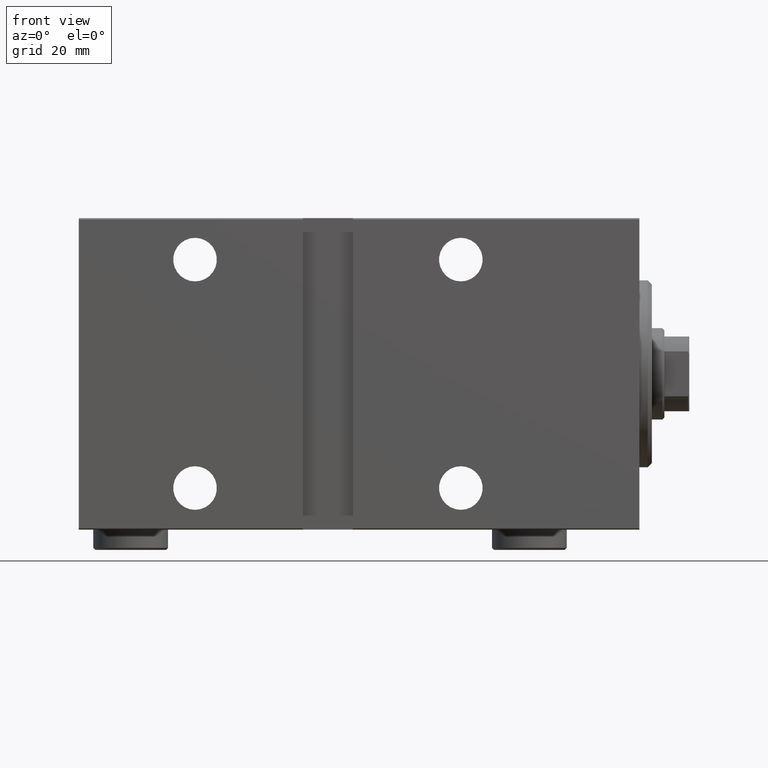
[diagram: clean part render]
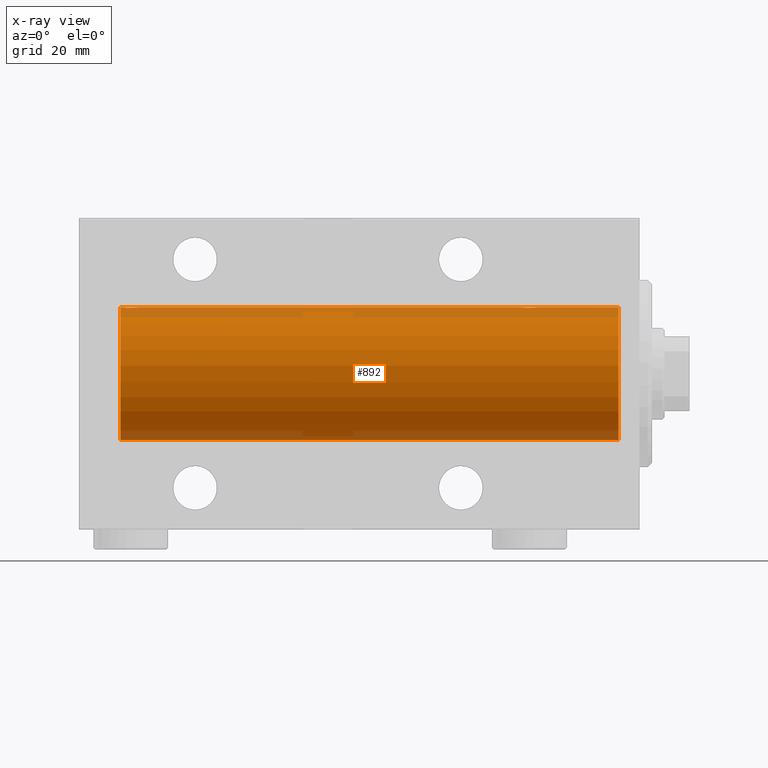
[diagram: x-ray — body ghosted, one internal face saturated and labeled with its STEP entity id]
A machine part, front view, then the same camera in x-ray: the body is ghosted and one INTERNAL B-rep face — a face not visible from any outside direction — is saturated and labeled: STEP entity #892.
In plain terms, the highlighted cylindrical surface (partial cylindrical patch) has radius 16 mm, axis along (1, 0, -0).
Its self-contained STEP definition (entity closure, byte-faithful):
#584 = CARTESIAN_POINT ( 'NONE',  ( 24.90998471899876066, 1.220169175415113827, 15.95377581882983442 ) ) ;
#892 = ADVANCED_FACE ( 'NONE', ( #36186 ), #5512, .F. ) ;
#1469 = CARTESIAN_POINT ( 'NONE',  ( 27.50659181559580446, 1.747750603376297729, 15.90457341008072056 ) ) ;
#2196 = ORIENTED_EDGE ( 'NONE', *, *, #18136, .T. ) ;
#2584 = CARTESIAN_POINT ( 'NONE',  ( 121.4968875296496407, 1.735145127817741662, 15.90580292899658410 ) ) ;
#3198 = LINE ( 'NONE', #19915, #30837 ) ;
#3259 = VERTEX_POINT ( 'NONE', #20470 ) ;
#3800 = CARTESIAN_POINT ( 'NONE',  ( 123.0253175645940047, 1.947280337074161150, 15.88137861827787489 ) ) ;
#4019 = CARTESIAN_POINT ( 'NONE',  ( 121.8561303196698589, 1.898058445420877982, 15.88709929148890154 ) ) ;
#4391 = CARTESIAN_POINT ( 'NONE',  ( 26.37014691649501685, 2.000047931387139322, 15.87450182760079187 ) ) ;
#4609 = CARTESIAN_POINT ( 'NONE',  ( 28.49999999999998579, 0.1322838750249257511, 16.00000000000000000 ) ) ;
#4808 = LINE ( 'NONE', #28776, #40244 ) ;
#5049 = CARTESIAN_POINT ( 'NONE',  ( 28.48700524008413382, 0.2623312429553315561, 15.99836091803360105 ) ) ;
#5509 = CARTESIAN_POINT ( 'NONE',  ( 120.9099847189987855, 1.220169175415117158, 15.95377581882983975 ) ) ;
#5512 = CYLINDRICAL_SURFACE ( 'NONE', #33920, 16.00000000000000000 ) ;
#6038 = CARTESIAN_POINT ( 'NONE',  ( 125.0000000000000000, 1.959434878635765131E-15, -16.00000000000000000 ) ) ;
#6470 = EDGE_CURVE ( 'NONE', #22560, #17367, #14355, .T. ) ;
#7079 = EDGE_CURVE ( 'NONE', #21003, #19011, #18511, .T. ) ;
#7161 = CARTESIAN_POINT ( 'NONE',  ( 124.2356809849826220, 1.002241074716279989, 15.96895041604535770 ) ) ;
#7207 = EDGE_CURVE ( 'NONE', #23665, #17367, #3198, .T. ) ;
#7384 = CARTESIAN_POINT ( 'NONE',  ( 124.2971341474822253, 0.8874076679346750707, 15.97583181162460697 ) ) ;
#8027 = CARTESIAN_POINT ( 'NONE',  ( 120.5000000000000142, -2.738767290746308786E-23, 16.00000000000000000 ) ) ;
#9510 = CARTESIAN_POINT ( 'NONE',  ( 5.000000000000004441, 0.000000000000000000, 16.00000000000000000 ) ) ;
#10170 = CARTESIAN_POINT ( 'NONE',  ( 125.0000000000000000, 0.000000000000000000, 16.00000000000000000 ) ) ;
#10519 = CARTESIAN_POINT ( 'NONE',  ( 124.3975887005559429, 0.6452446332038145327, 15.98744362947834929 ) ) ;
#10665 = EDGE_CURVE ( 'NONE', #15382, #22560, #43967, .T. ) ;
#10890 = CARTESIAN_POINT ( 'NONE',  ( 28.23568098498261492, 1.002241074716280655, 15.96895041604536480 ) ) ;
#10975 = ORIENTED_EDGE ( 'NONE', *, *, #7079, .T. ) ;
#11109 = CARTESIAN_POINT ( 'NONE',  ( 24.49999999999999289, 0.1305944228192297274, 15.99999999999999645 ) ) ;
#11201 = VERTEX_POINT ( 'NONE', #8027 ) ;
#11334 = CARTESIAN_POINT ( 'NONE',  ( 26.76191462762254858, 1.999903730784154066, 15.87451999516785861 ) ) ;
#11556 = CARTESIAN_POINT ( 'NONE',  ( 25.17924175171067702, 1.507649250492130388, 15.92908549642226745 ) ) ;
#11774 = DIRECTION ( 'NONE',  ( -1.000000000000000000, 0.000000000000000000, 0.000000000000000000 ) ) ;
#11897 = DIRECTION ( 'NONE',  ( -1.000000000000000000, 0.000000000000000000, 0.000000000000000000 ) ) ;
#12672 = CARTESIAN_POINT ( 'NONE',  ( 120.9926283968757303, 1.321075116345873601, 15.94564302722883653 ) ) ;
#13318 = DIRECTION ( 'NONE',  ( -1.000000000000000000, -0.000000000000000000, -0.000000000000000000 ) ) ;
#13684 = VECTOR ( 'NONE', #28585, 1000.000000000000000 ) ;
#14256 = CARTESIAN_POINT ( 'NONE',  ( 24.76517329325045225, 1.003662148334361959, 15.96885838080210007 ) ) ;
#14355 = CIRCLE ( 'NONE', #37228, 16.00000000000000000 ) ;
#14462 = ORIENTED_EDGE ( 'NONE', *, *, #28796, .T. ) ;
#14482 = DIRECTION ( 'NONE',  ( 0.000000000000000000, 0.000000000000000000, 1.000000000000000000 ) ) ;
#14484 = CARTESIAN_POINT ( 'NONE',  ( 24.56430947073869930, 0.5198215460038717595, 15.99206840425678955 ) ) ;
#15137 = CARTESIAN_POINT ( 'NONE',  ( 24.51309075167874596, 0.2632563459770819736, 15.99834873924246459 ) ) ;
#15382 = VERTEX_POINT ( 'NONE', #30319 ) ;
#15598 = CARTESIAN_POINT ( 'NONE',  ( 120.5130907516787602, 0.2632563459770823622, 15.99834873924246104 ) ) ;
#15674 = CARTESIAN_POINT ( 'NONE',  ( 125.0000000000000000, 0.000000000000000000, 16.00000000000000000 ) ) ;
#17367 = VERTEX_POINT ( 'NONE', #17960 ) ;
#17472 = CARTESIAN_POINT ( 'NONE',  ( 122.3701469164950311, 2.000047931387136213, 15.87450182760079898 ) ) ;
#17688 = CARTESIAN_POINT ( 'NONE',  ( 121.6138224294273158, 1.797743958659247854, 15.89876304682111652 ) ) ;
#17960 = CARTESIAN_POINT ( 'NONE',  ( 5.000000000000004441, 1.959434878635765131E-15, -16.00000000000000000 ) ) ;
#18060 = CARTESIAN_POINT ( 'NONE',  ( 125.0000000000000000, 0.000000000000000000, 0.000000000000000000 ) ) ;
#18136 = EDGE_CURVE ( 'NONE', #11201, #3259, #4808, .T. ) ;
#18182 = AXIS2_PLACEMENT_3D ( 'NONE', #18060, #11774, #14482 ) ;
#18496 = CARTESIAN_POINT ( 'NONE',  ( 28.00610712468246177, 1.322357532253821910, 15.94553003295878391 ) ) ;
#18511 = LINE ( 'NONE', #25677, #13684 ) ;
#19011 = VERTEX_POINT ( 'NONE', #29770 ) ;
#19174 = CARTESIAN_POINT ( 'NONE',  ( 120.5643094707387348, 0.5198215460038717595, 15.99206840425679310 ) ) ;
#19610 = CARTESIAN_POINT ( 'NONE',  ( 120.7025007139496040, 0.8866640484200094541, 15.97587307151818159 ) ) ;
#19915 = CARTESIAN_POINT ( 'NONE',  ( 125.0000000000000000, 1.959434878635765131E-15, -16.00000000000000000 ) ) ;
#19924 = B_SPLINE_CURVE_WITH_KNOTS ( 'NONE', 3,
 ( #37833, #31340, #34249, #38057, #10519, #7384, #7161, #20833, #34475, #21055, #27989, #3800, #27764, #17472, #31117, #34695, #4019, #17688, #2584, #28208, #43324, #12672, #5509, #29251, #19610, #41846, #19174, #15598, #42883, #25679 ),
 .UNSPECIFIED., .F., .F.,
 ( 4, 2, 2, 2, 2, 2, 2, 2, 2, 2, 2, 2, 2, 2, 4 ),
 ( 3.488315472694475996E-18, 0.0003911894522871196605, 0.0007823789045742358516, 0.001173568356861352151, 0.001564757809148468234, 0.002347136713722699532, 0.003129515618296931263, 0.003520705070584047563, 0.003911894522871163862, 0.004303083975158279728, 0.004694273427445395594, 0.005085462879732512327, 0.005476652332019629060, 0.005867841784306744926, 0.006259031236593860792 ),
 .UNSPECIFIED. ) ;
#20153 = EDGE_CURVE ( 'NONE', #21003, #23665, #30323, .T. ) ;
#20470 = CARTESIAN_POINT ( 'NONE',  ( 28.49999999999999645, -1.207828523974853969E-15, 16.00000000000000000 ) ) ;
#20833 = CARTESIAN_POINT ( 'NONE',  ( 124.0905150485210129, 1.219564485341765758, 15.95382484008322344 ) ) ;
#21003 = VERTEX_POINT ( 'NONE', #15674 ) ;
#21055 = CARTESIAN_POINT ( 'NONE',  ( 123.7295611173978500, 1.598790766515140849, 15.92099550861381374 ) ) ;
#21203 = CARTESIAN_POINT ( 'NONE',  ( 24.70250071394960045, 0.8866640484200088990, 15.97587307151817448 ) ) ;
#21643 = VECTOR ( 'NONE', #13318, 1000.000000000000000 ) ;
#21862 = CARTESIAN_POINT ( 'NONE',  ( 28.49999999999999645, -1.207828523974853969E-15, 16.00000000000000000 ) ) ;
#22560 = VERTEX_POINT ( 'NONE', #9510 ) ;
#23665 = VERTEX_POINT ( 'NONE', #6038 ) ;
#24144 = EDGE_LOOP ( 'NONE', ( #33376, #30458, #10975, #40528, #2196, #14462, #31466, #31458 ) ) ;
#24564 = CARTESIAN_POINT ( 'NONE',  ( 25.98086902289887234, 1.935876924222074358, 15.88247600692093187 ) ) ;
#24787 = CARTESIAN_POINT ( 'NONE',  ( 25.49688752964961225, 1.735145127817741439, 15.90580292899658410 ) ) ;
#24981 = DIRECTION ( 'NONE',  ( -1.000000000000000000, -0.000000000000000000, -0.000000000000000000 ) ) ;
#25003 = CARTESIAN_POINT ( 'NONE',  ( 24.50000000000000000, -2.739635037742051899E-23, 16.00000000000000000 ) ) ;
#25442 = CARTESIAN_POINT ( 'NONE',  ( 24.99262839687570903, 1.321075116345881595, 15.94564302722883298 ) ) ;
#25561 = DIRECTION ( 'NONE',  ( 0.000000000000000000, 0.000000000000000000, 1.000000000000000000 ) ) ;
#25677 = CARTESIAN_POINT ( 'NONE',  ( 125.0000000000000000, 0.000000000000000000, 16.00000000000000000 ) ) ;
#25679 = CARTESIAN_POINT ( 'NONE',  ( 120.5000000000000142, -2.738767290746308786E-23, 16.00000000000000000 ) ) ;
#26112 = CARTESIAN_POINT ( 'NONE',  ( 125.0000000000000000, 0.000000000000000000, 0.000000000000000000 ) ) ;
#27764 = CARTESIAN_POINT ( 'NONE',  ( 122.7619146276225450, 1.999903730784150069, 15.87451999516785861 ) ) ;
#27912 = CARTESIAN_POINT ( 'NONE',  ( 28.43611326682063378, 0.5181437283162068086, 15.99211983514074298 ) ) ;
#27989 = CARTESIAN_POINT ( 'NONE',  ( 123.5065918155958542, 1.747750603376302614, 15.90457341008073477 ) ) ;
#28139 = CARTESIAN_POINT ( 'NONE',  ( 27.02531756459403667, 1.947280337074160927, 15.88137861827786779 ) ) ;
#28208 = CARTESIAN_POINT ( 'NONE',  ( 121.2803234255772225, 1.590393755196000125, 15.92092783521423627 ) ) ;
#28356 = CARTESIAN_POINT ( 'NONE',  ( 28.39758870055591444, 0.6452446332038146437, 15.98744362947834574 ) ) ;
#28573 = CARTESIAN_POINT ( 'NONE',  ( 28.09051504852099512, 1.219564485341767091, 15.95382484008323409 ) ) ;
#28585 = DIRECTION ( 'NONE',  ( -1.000000000000000000, -0.000000000000000000, -0.000000000000000000 ) ) ;
#28776 = CARTESIAN_POINT ( 'NONE',  ( 125.0000000000000000, 0.000000000000000000, 16.00000000000000000 ) ) ;
#28796 = EDGE_CURVE ( 'NONE', #3259, #15382, #37158, .T. ) ;
#29251 = CARTESIAN_POINT ( 'NONE',  ( 120.7651732932504984, 1.003662148334365289, 15.96885838080210362 ) ) ;
#29770 = CARTESIAN_POINT ( 'NONE',  ( 124.5000000000000142, 3.590027768233731054E-15, 16.00000000000000000 ) ) ;
#30319 = CARTESIAN_POINT ( 'NONE',  ( 24.50000000000000000, -2.739635037742051899E-23, 16.00000000000000000 ) ) ;
#30323 = CIRCLE ( 'NONE', #18182, 16.00000000000000000 ) ;
#30458 = ORIENTED_EDGE ( 'NONE', *, *, #20153, .F. ) ;
#30837 = VECTOR ( 'NONE', #39840, 1000.000000000000000 ) ;
#31117 = CARTESIAN_POINT ( 'NONE',  ( 122.2374841699210180, 1.987008272775785622, 15.87616016863256618 ) ) ;
#31340 = CARTESIAN_POINT ( 'NONE',  ( 124.5000000000000568, 0.1322838750249261675, 16.00000000000000355 ) ) ;
#31458 = ORIENTED_EDGE ( 'NONE', *, *, #6470, .T. ) ;
#31466 = ORIENTED_EDGE ( 'NONE', *, *, #10665, .T. ) ;
#33376 = ORIENTED_EDGE ( 'NONE', *, *, #7207, .F. ) ;
#33920 = AXIS2_PLACEMENT_3D ( 'NONE', #26112, #36400, #39759 ) ;
#34249 = CARTESIAN_POINT ( 'NONE',  ( 124.4870052400841445, 0.2623312429553332770, 15.99836091803360105 ) ) ;
#34475 = CARTESIAN_POINT ( 'NONE',  ( 124.0061071246824866, 1.322357532253812806, 15.94553003295878391 ) ) ;
#34695 = CARTESIAN_POINT ( 'NONE',  ( 121.9808690228988866, 1.935876924222072804, 15.88247600692093187 ) ) ;
#35507 = CARTESIAN_POINT ( 'NONE',  ( 25.28032342557723311, 1.590393755196000347, 15.92092783521424337 ) ) ;
#36186 = FACE_OUTER_BOUND ( 'NONE', #24144, .T. ) ;
#36400 = DIRECTION ( 'NONE',  ( -1.000000000000000000, -0.000000000000000000, -0.000000000000000000 ) ) ;
#37158 = B_SPLINE_CURVE_WITH_KNOTS ( 'NONE', 3,
 ( #21862, #4609, #5049, #27912, #28356, #38865, #10890, #28573, #18496, #39084, #1469, #28139, #11334, #4391, #38426, #24564, #38199, #41774, #24787, #35507, #11556, #25442, #584, #14256, #21203, #42213, #14484, #15137, #11109, #25003 ),
 .UNSPECIFIED., .F., .F.,
 ( 4, 2, 2, 2, 2, 2, 2, 2, 2, 2, 2, 2, 2, 2, 4 ),
 ( 1.745049934674283425E-18, 0.0003911894522871204737, 0.0007823789045742392126, 0.001173568356861357789, 0.001564757809148476691, 0.002347136713722706037, 0.003129515618296936034, 0.003520705070584051466, 0.003911894522871166464, 0.004303083975158282330, 0.004694273427445396461, 0.005085462879732512327, 0.005476652332019627326, 0.005867841784306743191, 0.006259031236593858190 ),
 .UNSPECIFIED. ) ;
#37228 = AXIS2_PLACEMENT_3D ( 'NONE', #42551, #11897, #25561 ) ;
#37608 = EDGE_CURVE ( 'NONE', #19011, #11201, #19924, .T. ) ;
#37833 = CARTESIAN_POINT ( 'NONE',  ( 124.5000000000000142, 3.590027768233731054E-15, 16.00000000000000000 ) ) ;
#38057 = CARTESIAN_POINT ( 'NONE',  ( 124.4361132668206551, 0.5181437283162084739, 15.99211983514075008 ) ) ;
#38199 = CARTESIAN_POINT ( 'NONE',  ( 25.85613031966986952, 1.898058445420883311, 15.88709929148890510 ) ) ;
#38426 = CARTESIAN_POINT ( 'NONE',  ( 26.23748416992101085, 1.987008272775788731, 15.87616016863256618 ) ) ;
#38865 = CARTESIAN_POINT ( 'NONE',  ( 28.29713414748220046, 0.8874076679346754037, 15.97583181162460697 ) ) ;
#39084 = CARTESIAN_POINT ( 'NONE',  ( 27.72956111739783580, 1.598790766515148620, 15.92099550861380131 ) ) ;
#39759 = DIRECTION ( 'NONE',  ( 0.000000000000000000, 0.000000000000000000, 1.000000000000000000 ) ) ;
#39840 = DIRECTION ( 'NONE',  ( -1.000000000000000000, -0.000000000000000000, -0.000000000000000000 ) ) ;
#40244 = VECTOR ( 'NONE', #24981, 1000.000000000000000 ) ;
#40528 = ORIENTED_EDGE ( 'NONE', *, *, #37608, .T. ) ;
#41774 = CARTESIAN_POINT ( 'NONE',  ( 25.61382242942729803, 1.797743958659254515, 15.89876304682112007 ) ) ;
#41846 = CARTESIAN_POINT ( 'NONE',  ( 120.6021627350110634, 0.6445079780200545505, 15.98747331501412461 ) ) ;
#42213 = CARTESIAN_POINT ( 'NONE',  ( 24.60216273501104567, 0.6445079780200539954, 15.98747331501412461 ) ) ;
#42551 = CARTESIAN_POINT ( 'NONE',  ( 5.000000000000004441, 0.000000000000000000, 0.000000000000000000 ) ) ;
#42883 = CARTESIAN_POINT ( 'NONE',  ( 120.5000000000000426, 0.1305944228192297552, 16.00000000000000000 ) ) ;
#43324 = CARTESIAN_POINT ( 'NONE',  ( 121.1792417517106912, 1.507649250492121951, 15.92908549642226745 ) ) ;
#43967 = LINE ( 'NONE', #10170, #21643 ) ;